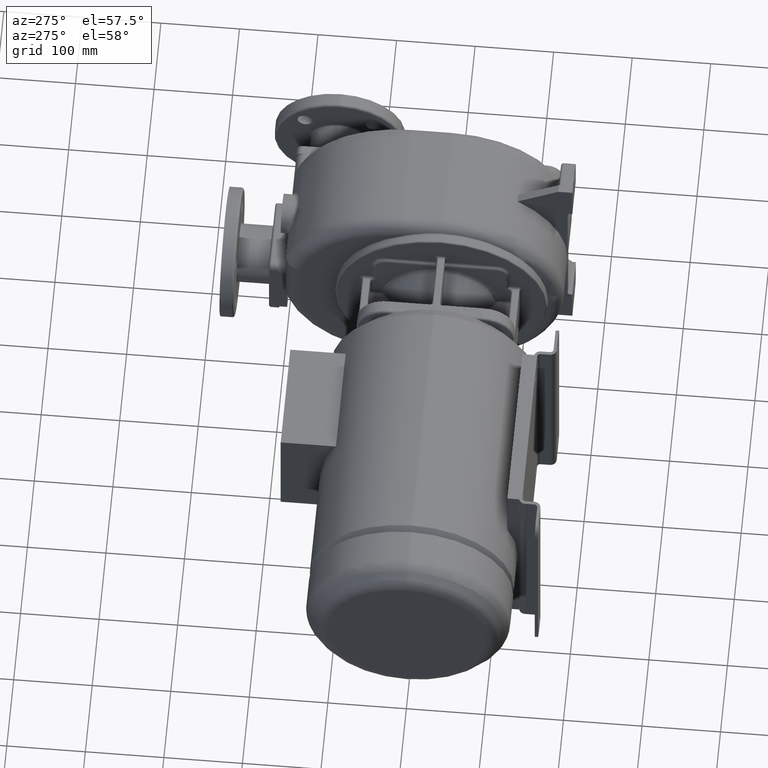
[diagram: clean part render]
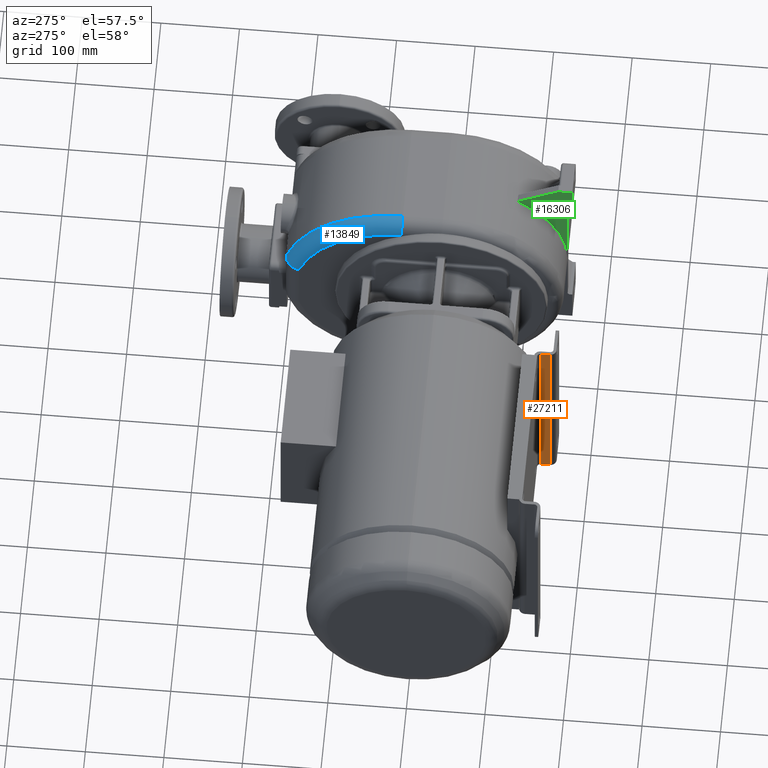
[diagram: same view with three faces highlighted in distinct colors, each labeled with its STEP entity id]
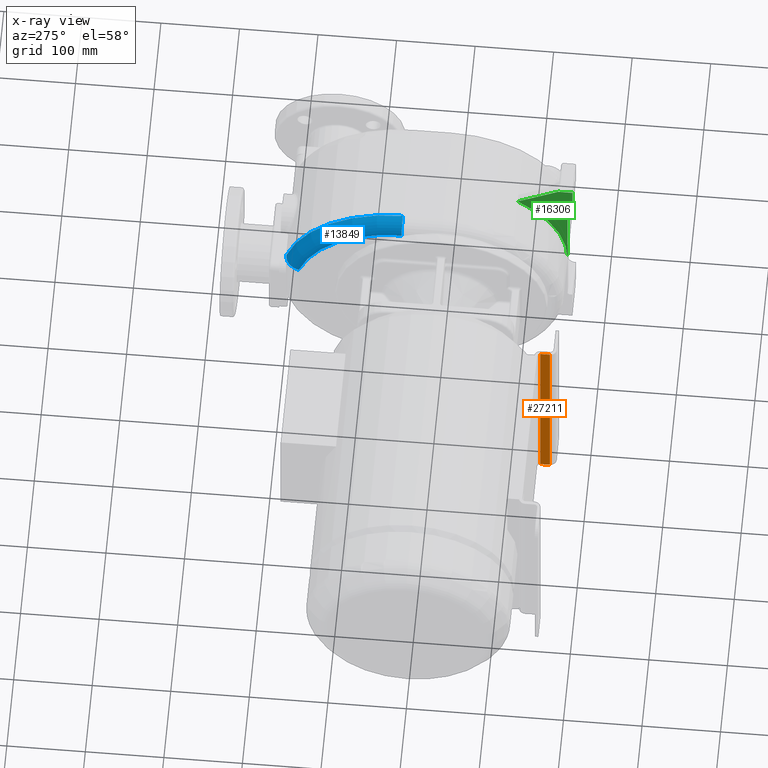
[diagram: x-ray of the same camera — body ghosted, the three highlighted faces saturated]
A machine part, auxiliary view with three faces highlighted in distinct colors.
The next image is the same camera in x-ray (body ghosted, the three faces saturated) — at least one of them is partly hidden behind the body in this view.
Their STEP definitions:

[orange] entity #27211 — the highlighted planar face has unit normal (1, 0, 0).
#9965=DIRECTION('',(0.E0,0.E0,1.E0));
#9966=VECTOR('',#9965,2.6E2);
#9967=CARTESIAN_POINT('',(3.51E2,-1.4E2,-1.3E2));
#9968=LINE('',#9967,#9966);
#10405=DIRECTION('',(0.E0,1.E0,0.E0));
#10406=VECTOR('',#10405,1.2E1);
#10407=CARTESIAN_POINT('',(3.51E2,-1.52E2,1.3E2));
#10408=LINE('',#10407,#10406);
#10421=DIRECTION('',(0.E0,1.E0,0.E0));
#10422=VECTOR('',#10421,1.2E1);
#10423=CARTESIAN_POINT('',(3.51E2,-1.52E2,-1.3E2));
#10424=LINE('',#10423,#10422);
#10425=DIRECTION('',(0.E0,0.E0,1.E0));
#10426=VECTOR('',#10425,2.6E2);
#10427=CARTESIAN_POINT('',(3.51E2,-1.52E2,-1.3E2));
#10428=LINE('',#10427,#10426);
#10838=CARTESIAN_POINT('',(3.51E2,-1.52E2,-1.3E2));
#10840=VERTEX_POINT('',#10838);
#10841=CARTESIAN_POINT('',(3.51E2,-1.4E2,-1.3E2));
#10842=VERTEX_POINT('',#10841);
#10854=CARTESIAN_POINT('',(3.51E2,-1.52E2,1.3E2));
#10856=VERTEX_POINT('',#10854);
#10857=CARTESIAN_POINT('',(3.51E2,-1.4E2,1.3E2));
#10858=VERTEX_POINT('',#10857);
#27199=CARTESIAN_POINT('',(3.51E2,-1.52E2,-1.3E2));
#27200=DIRECTION('',(1.E0,0.E0,0.E0));
#27201=DIRECTION('',(0.E0,1.E0,0.E0));
#27202=AXIS2_PLACEMENT_3D('',#27199,#27200,#27201);
#27203=PLANE('',#27202);
#27204=ORIENTED_EDGE('',*,*,#27192,.T.);
#27205=ORIENTED_EDGE('',*,*,#26500,.T.);
#27206=ORIENTED_EDGE('',*,*,#27165,.F.);
#27208=ORIENTED_EDGE('',*,*,#27207,.F.);
#27209=EDGE_LOOP('',(#27204,#27205,#27206,#27208));
#27210=FACE_OUTER_BOUND('',#27209,.F.);
#27211=ADVANCED_FACE('',(#27210),#27203,.F.);
#26500=EDGE_CURVE('',#10842,#10858,#9968,.T.);
#27165=EDGE_CURVE('',#10856,#10858,#10408,.T.);
#27192=EDGE_CURVE('',#10840,#10842,#10424,.T.);
#27207=EDGE_CURVE('',#10840,#10856,#10428,.T.);

[blue] entity #13849 — the highlighted toroidal blend (fillet) surface has major radius 136 mm and minor (blend) radius 18 mm.
#1994=CARTESIAN_POINT('',(5.155E2,5.117894898810E1,-9.5E0));
#1995=DIRECTION('',(-1.E0,0.E0,0.E0));
#1996=DIRECTION('',(0.E0,0.E0,1.E0));
#1997=AXIS2_PLACEMENT_3D('',#1994,#1995,#1996);
#2075=CARTESIAN_POINT('',(5.335E2,5.117894898810E1,1.265E2));
#2076=DIRECTION('',(0.E0,1.E0,0.E0));
#2077=DIRECTION('',(-1.E0,0.E0,0.E0));
#2078=AXIS2_PLACEMENT_3D('',#2075,#2076,#2077);
#2209=CARTESIAN_POINT('',(5.335E2,5.117894898810E1,-9.5E0));
#2210=DIRECTION('',(-1.E0,0.E0,0.E0));
#2211=DIRECTION('',(0.E0,0.E0,1.E0));
#2212=AXIS2_PLACEMENT_3D('',#2209,#2210,#2211);
#2315=CARTESIAN_POINT('',(5.335039847584E2,1.995623477914E2,3.171124632593E1));
#2316=CARTESIAN_POINT('',(5.333219149820E2,1.995623506107E2,3.171123615273E1));
#2317=CARTESIAN_POINT('',(5.329582797840E2,1.995570902840E2,3.171001593946E1));
#2318=CARTESIAN_POINT('',(5.324159956373E2,1.995331223030E2,3.170459082462E1));
#2319=CARTESIAN_POINT('',(5.318738931727E2,1.994931629857E2,3.169559098956E1));
#2320=CARTESIAN_POINT('',(5.313334324453E2,1.994372271694E2,3.168301988472E1));
#2321=CARTESIAN_POINT('',(5.307948795771E2,1.993653761706E2,3.166687202852E1));
#2322=CARTESIAN_POINT('',(5.302588144821E2,1.992776854270E2,3.164713076936E1));
#2323=CARTESIAN_POINT('',(5.297257288579E2,1.991742527444E2,3.162377119083E1));
#2324=CARTESIAN_POINT('',(5.291961006212E2,1.990551552901E2,3.159687527928E1));
#2325=CARTESIAN_POINT('',(5.286703779836E2,1.989204932071E2,3.156646944892E1));
#2326=CARTESIAN_POINT('',(5.281490028731E2,1.987703746150E2,3.153258362927E1));
#2327=CARTESIAN_POINT('',(5.276324184203E2,1.986049218633E2,3.149523928274E1));
#2328=CARTESIAN_POINT('',(5.271210591156E2,1.984242673543E2,3.145444996630E1));
#2329=CARTESIAN_POINT('',(5.266154153528E2,1.982285767301E2,3.141023523578E1));
#2330=CARTESIAN_POINT('',(5.261159792780E2,1.980180449510E2,3.136258599487E1));
#2331=CARTESIAN_POINT('',(5.256232342129E2,1.977928568424E2,3.131158962899E1));
#2332=CARTESIAN_POINT('',(5.251376653859E2,1.975532179153E2,3.125733957701E1));
#2333=CARTESIAN_POINT('',(5.246597481157E2,1.972993665261E2,3.119987428429E1));
#2334=CARTESIAN_POINT('',(5.241899482627E2,1.970315561668E2,3.113923989913E1));
#2335=CARTESIAN_POINT('',(5.237287289747E2,1.967500643959E2,3.107547576659E1));
#2336=CARTESIAN_POINT('',(5.232765109535E2,1.964551675189E2,3.100861084624E1));
#2337=CARTESIAN_POINT('',(5.228336598605E2,1.961471204669E2,3.093867052780E1));
#2338=CARTESIAN_POINT('',(5.224005430692E2,1.958262005386E2,3.086564509569E1));
#2339=CARTESIAN_POINT('',(5.219775179727E2,1.954926262751E2,3.078975109950E1));
#2340=CARTESIAN_POINT('',(5.215649663877E2,1.951466972346E2,3.071103878622E1));
#2341=CARTESIAN_POINT('',(5.211632756687E2,1.947887358842E2,3.062956836115E1));
#2342=CARTESIAN_POINT('',(5.207728201059E2,1.944190773175E2,3.054539172869E1));
#2343=CARTESIAN_POINT('',(5.203939642770E2,1.940380712044E2,3.045855654231E1));
#2344=CARTESIAN_POINT('',(5.200270513395E2,1.936460677399E2,3.036910874365E1));
#2345=CARTESIAN_POINT('',(5.196724133441E2,1.932434316913E2,3.027707440936E1));
#2346=CARTESIAN_POINT('',(5.193303694156E2,1.928305171667E2,3.018254106562E1));
#2347=CARTESIAN_POINT('',(5.190012365968E2,1.924076621143E2,3.008572458874E1));
#2348=CARTESIAN_POINT('',(5.186853504076E2,1.919753084540E2,2.998666892941E1));
#2349=CARTESIAN_POINT('',(5.183830238223E2,1.915338920425E2,2.988545871509E1));
#2350=CARTESIAN_POINT('',(5.180945611141E2,1.910838779078E2,2.978216957380E1));
#2351=CARTESIAN_POINT('',(5.178202109265E2,1.906256824280E2,2.967686013091E1));
#2352=CARTESIAN_POINT('',(5.175601818154E2,1.901596698867E2,2.956959452288E1));
#2353=CARTESIAN_POINT('',(5.173146808949E2,1.896862359922E2,2.946036535565E1));
#2354=CARTESIAN_POINT('',(5.170839115728E2,1.892056976051E2,2.934947224806E1));
#2355=CARTESIAN_POINT('',(5.168681200504E2,1.887185440774E2,2.923705583994E1));
#2356=CARTESIAN_POINT('',(5.166675353071E2,1.882253104117E2,2.912318082476E1));
#2357=CARTESIAN_POINT('',(5.164823639650E2,1.877265381834E2,2.900792864777E1));
#2358=CARTESIAN_POINT('',(5.163127846701E2,1.872227702842E2,2.889137130314E1));
#2359=CARTESIAN_POINT('',(5.161589194588E2,1.867144392895E2,2.877355190066E1));
#2360=CARTESIAN_POINT('',(5.160208838720E2,1.862019823777E2,2.865451897472E1));
#2361=CARTESIAN_POINT('',(5.158987845237E2,1.856858494632E2,2.853430041513E1));
#2362=CARTESIAN_POINT('',(5.157927090993E2,1.851663609771E2,2.841320205202E1));
#2363=CARTESIAN_POINT('',(5.157027399761E2,1.846438851033E2,2.829132565586E1));
#2364=CARTESIAN_POINT('',(5.156289603764E2,1.841187955679E2,2.816877820378E1));
#2365=CARTESIAN_POINT('',(5.155714423813E2,1.835914497521E2,2.804575417100E1));
#2366=CARTESIAN_POINT('',(5.155302858043E2,1.830622934998E2,2.792208333902E1));
#2367=CARTESIAN_POINT('',(5.155054726563E2,1.825314726221E2,2.779895104612E1));
#2368=CARTESIAN_POINT('',(5.155000958427E2,1.821773512090E2,2.771462624375E1));
#2369=CARTESIAN_POINT('',(5.155E2,1.820000000036E2,2.767327820096E1));
#11624=CARTESIAN_POINT('',(5.155E2,1.820000000009E2,2.767319752397E1));
#11626=VERTEX_POINT('',#11624);
#11640=CARTESIAN_POINT('',(5.335E2,5.117894898810E1,1.445E2));
#11641=VERTEX_POINT('',#11640);
#11642=CARTESIAN_POINT('',(5.335E2,1.995623506058E2,3.171123784085E1));
#11643=VERTEX_POINT('',#11642);
#11644=CARTESIAN_POINT('',(5.155E2,5.117894898810E1,1.265E2));
#11645=VERTEX_POINT('',#11644);
#13836=CARTESIAN_POINT('',(5.335E2,5.117894898810E1,-9.5E0));
#13837=DIRECTION('',(-1.E0,0.E0,0.E0));
#13838=DIRECTION('',(0.E0,-6.063246134862E-1,-7.952172426959E-1));
#13839=AXIS2_PLACEMENT_3D('',#13836,#13837,#13838);
#13840=TOROIDAL_SURFACE('',#13839,1.36E2,1.8E1);
#13842=ORIENTED_EDGE('',*,*,#13841,.F.);
#13843=ORIENTED_EDGE('',*,*,#13825,.F.);
#13844=ORIENTED_EDGE('',*,*,#13776,.T.);
#13846=ORIENTED_EDGE('',*,*,#13845,.F.);
#13847=EDGE_LOOP('',(#13842,#13843,#13844,#13846));
#13848=FACE_OUTER_BOUND('',#13847,.F.);
#13849=ADVANCED_FACE('',(#13848),#13840,.T.);
#1998=CIRCLE('',#1997,1.36E2);
#2079=CIRCLE('',#2078,1.8E1);
#2213=CIRCLE('',#2212,1.54E2);
#2370=B_SPLINE_CURVE_WITH_KNOTS('',3,(#2315,#2316,#2317,#2318,#2319,#2320,#2321,
#2322,#2323,#2324,#2325,#2326,#2327,#2328,#2329,#2330,#2331,#2332,#2333,#2334,
#2335,#2336,#2337,#2338,#2339,#2340,#2341,#2342,#2343,#2344,#2345,#2346,#2347,
#2348,#2349,#2350,#2351,#2352,#2353,#2354,#2355,#2356,#2357,#2358,#2359,#2360,
#2361,#2362,#2363,#2364,#2365,#2366,#2367,#2368,#2369),.UNSPECIFIED.,.F.,.F.,(4,
1,1,1,1,1,1,1,1,1,1,1,1,1,1,1,1,1,1,1,1,1,1,1,1,1,1,1,1,1,1,1,1,1,1,1,1,1,1,1,1,
1,1,1,1,1,1,1,1,1,1,1,4),(0.E0,1.923076923077E-2,3.846153846154E-2,
5.769230769231E-2,7.692307692308E-2,9.615384615385E-2,1.153846153846E-1,
1.346153846154E-1,1.538461538462E-1,1.730769230769E-1,1.923076923077E-1,
2.115384615385E-1,2.307692307692E-1,2.5E-1,2.692307692308E-1,2.884615384615E-1,
3.076923076923E-1,3.269230769231E-1,3.461538461538E-1,3.653846153846E-1,
3.846153846154E-1,4.038461538462E-1,4.230769230769E-1,4.423076923077E-1,
4.615384615385E-1,4.807692307692E-1,5.E-1,5.192307692308E-1,5.384615384615E-1,
5.576923076923E-1,5.769230769231E-1,5.961538461538E-1,6.153846153846E-1,
6.346153846154E-1,6.538461538462E-1,6.730769230769E-1,6.923076923077E-1,
7.115384615385E-1,7.307692307692E-1,7.5E-1,7.692307692308E-1,7.884615384615E-1,
8.076923076923E-1,8.269230769231E-1,8.461538461538E-1,8.653846153846E-1,
8.846153846154E-1,9.038461538462E-1,9.230769230769E-1,9.423076923077E-1,
9.615384615385E-1,9.807692307692E-1,1.E0),.UNSPECIFIED.);
#13776=EDGE_CURVE('',#11645,#11626,#1998,.T.);
#13825=EDGE_CURVE('',#11645,#11641,#2079,.T.);
#13841=EDGE_CURVE('',#11641,#11643,#2213,.T.);
#13845=EDGE_CURVE('',#11643,#11626,#2370,.T.);

[green] entity #16306 — the highlighted planar face has unit normal (-1, 0, 0).
#4964=DIRECTION('',(0.E0,7.071067811865E-1,-7.071067811865E-1));
#4965=VECTOR('',#4964,3.029437251523E0);
#4966=CARTESIAN_POINT('',(5.865E2,-1.561421356237E2,9.5E1));
#4967=LINE('',#4966,#4965);
#4968=DIRECTION('',(0.E0,0.E0,1.E0));
#4969=VECTOR('',#4968,1.023578643763E2);
#4970=CARTESIAN_POINT('',(5.865E2,-1.54E2,-9.5E0));
#4971=LINE('',#4970,#4969);
#4972=CARTESIAN_POINT('',(5.865E2,0.E0,-9.5E0));
#4973=DIRECTION('',(-1.E0,0.E0,0.E0));
#4974=DIRECTION('',(0.E0,-1.E0,0.E0));
#4975=AXIS2_PLACEMENT_3D('',#4972,#4973,#4974);
#4977=DIRECTION('',(0.E0,8.660254037844E-1,-5.E-1));
#4978=VECTOR('',#4977,5.961250754357E1);
#4979=CARTESIAN_POINT('',(5.865E2,-1.42E2,1.45E2));
#4980=LINE('',#4979,#4978);
#4981=DIRECTION('',(0.E0,1.E0,0.E0));
#4982=VECTOR('',#4981,1.8E1);
#4983=CARTESIAN_POINT('',(5.865E2,-1.6E2,1.45E2));
#4984=LINE('',#4983,#4982);
#5001=DIRECTION('',(0.E0,1.E0,0.E0));
#5002=VECTOR('',#5001,3.857864376269E0);
#5003=CARTESIAN_POINT('',(5.865E2,-1.6E2,9.5E1));
#5004=LINE('',#5003,#5002);
#5009=DIRECTION('',(0.E0,0.E0,-1.E0));
#5010=VECTOR('',#5009,5.E1);
#5011=CARTESIAN_POINT('',(5.865E2,-1.6E2,1.45E2));
#5012=LINE('',#5011,#5010);
#11563=CARTESIAN_POINT('',(5.865E2,-1.6E2,1.45E2));
#11565=VERTEX_POINT('',#11563);
#11650=CARTESIAN_POINT('',(5.865E2,-1.6E2,9.5E1));
#11651=VERTEX_POINT('',#11650);
#11664=CARTESIAN_POINT('',(5.865E2,-1.561421356237E2,9.5E1));
#11666=VERTEX_POINT('',#11664);
#11684=CARTESIAN_POINT('',(5.865E2,-9.037405408398E1,1.151937462282E2));
#11685=VERTEX_POINT('',#11684);
#11696=CARTESIAN_POINT('',(5.865E2,-1.42E2,1.45E2));
#11697=VERTEX_POINT('',#11696);
#11699=CARTESIAN_POINT('',(5.865E2,-1.54E2,-9.5E0));
#11701=VERTEX_POINT('',#11699);
#11702=CARTESIAN_POINT('',(5.865E2,-1.54E2,9.285786437627E1));
#11703=VERTEX_POINT('',#11702);
#16287=CARTESIAN_POINT('',(5.865E2,-1.6E2,-9.5E1));
#16288=DIRECTION('',(-1.E0,0.E0,0.E0));
#16289=DIRECTION('',(0.E0,0.E0,-1.E0));
#16290=AXIS2_PLACEMENT_3D('',#16287,#16288,#16289);
#16291=PLANE('',#16290);
#16293=ORIENTED_EDGE('',*,*,#16292,.T.);
#16294=ORIENTED_EDGE('',*,*,#16274,.F.);
#16295=ORIENTED_EDGE('',*,*,#14379,.T.);
#16297=ORIENTED_EDGE('',*,*,#16296,.F.);
#16299=ORIENTED_EDGE('',*,*,#16298,.F.);
#16301=ORIENTED_EDGE('',*,*,#16300,.T.);
#16303=ORIENTED_EDGE('',*,*,#16302,.T.);
#16304=EDGE_LOOP('',(#16293,#16294,#16295,#16297,#16299,#16301,#16303));
#16305=FACE_OUTER_BOUND('',#16304,.F.);
#16306=ADVANCED_FACE('',(#16305),#16291,.T.);
#4976=CIRCLE('',#4975,1.54E2);
#14379=EDGE_CURVE('',#11701,#11685,#4976,.T.);
#16274=EDGE_CURVE('',#11701,#11703,#4971,.T.);
#16292=EDGE_CURVE('',#11666,#11703,#4967,.T.);
#16296=EDGE_CURVE('',#11697,#11685,#4980,.T.);
#16298=EDGE_CURVE('',#11565,#11697,#4984,.T.);
#16300=EDGE_CURVE('',#11565,#11651,#5012,.T.);
#16302=EDGE_CURVE('',#11651,#11666,#5004,.T.);